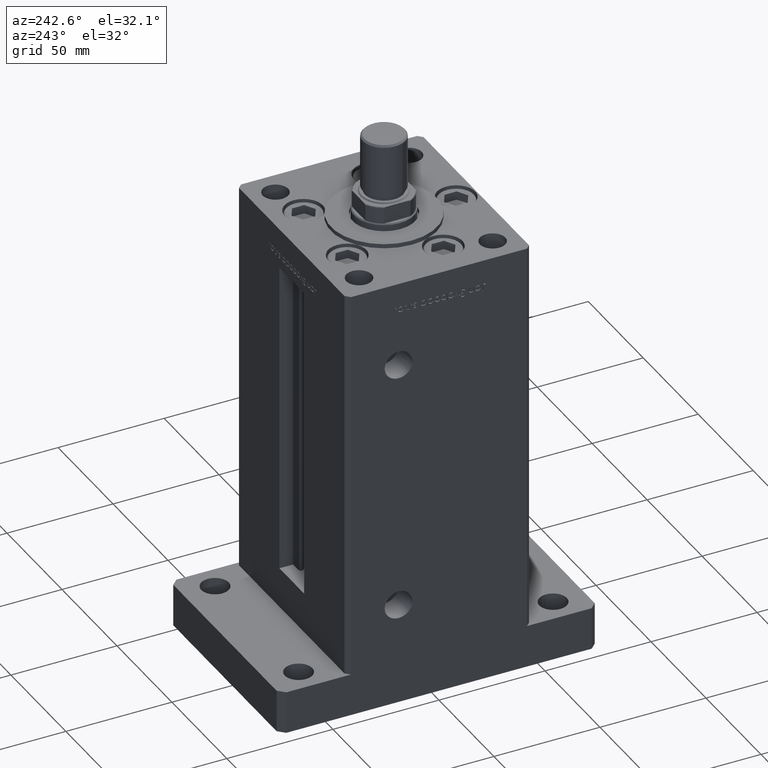
[diagram: clean part render]
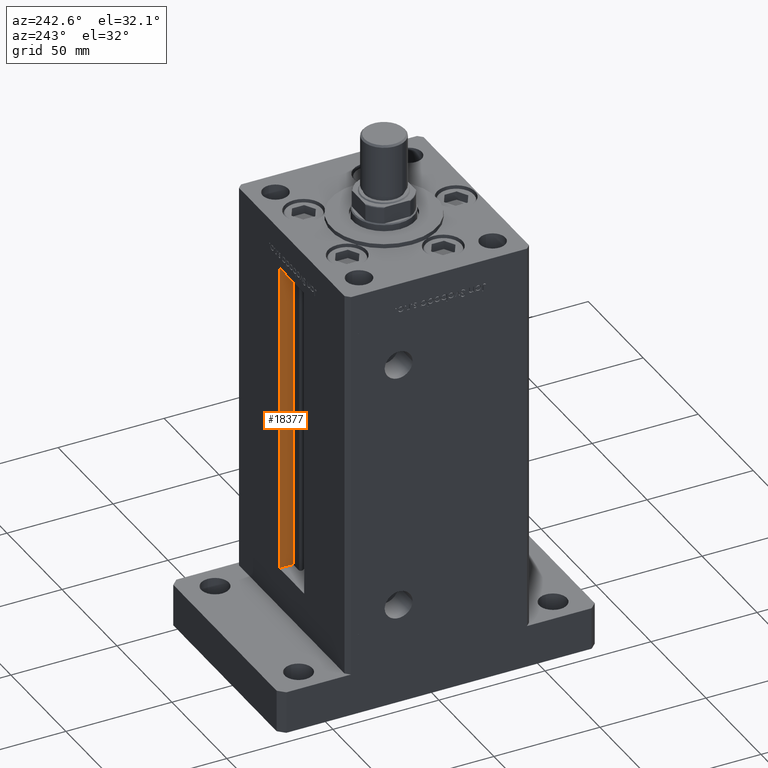
[diagram: same view with one face highlighted and labeled with its STEP entity id]
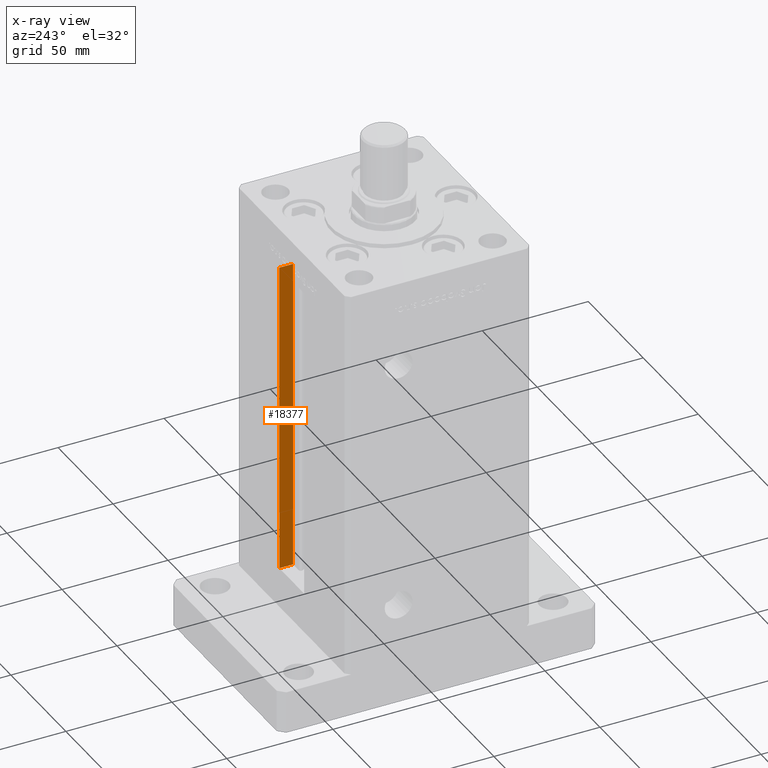
[diagram: x-ray of the same camera — body ghosted, the highlighted face saturated]
A machine part, auxiliary view. The second image highlights one B-rep face of the part: STEP entity #18377.
The next image is the same camera in x-ray: the body ghosted, the highlighted face saturated — about 0% of this face is hidden behind the body in this view.
In plain terms, the highlighted planar face has unit normal (1, 0, 0).
Its self-contained STEP definition (entity closure, byte-faithful):
#13 = DIRECTION ( 'NONE',  ( 0.000000000000000000, 1.000000000000000000, 0.000000000000000000 ) ) ;
#120 = VECTOR ( 'NONE', #4575, 1000.000000000000000 ) ;
#187 = VECTOR ( 'NONE', #27071, 1000.000000000000000 ) ;
#393 = CARTESIAN_POINT ( 'NONE',  ( 11.24999999999999112, 43.50000000000000000, 148.5000000000000000 ) ) ;
#640 = DIRECTION ( 'NONE',  ( -0.000000000000000000, -0.000000000000000000, 1.000000000000000000 ) ) ;
#1869 = CARTESIAN_POINT ( 'NONE',  ( 11.24999999999999822, 0.000000000000000000, 148.5000000000000000 ) ) ;
#3095 = AXIS2_PLACEMENT_3D ( 'NONE', #20547, #50107, #53951 ) ;
#3829 = FACE_OUTER_BOUND ( 'NONE', #24997, .T. ) ;
#4575 = DIRECTION ( 'NONE',  ( -0.000000000000000000, -0.000000000000000000, 1.000000000000000000 ) ) ;
#8041 = LINE ( 'NONE', #37340, #19026 ) ;
#8203 = ORIENTED_EDGE ( 'NONE', *, *, #18338, .F. ) ;
#8216 = CARTESIAN_POINT ( 'NONE',  ( 11.24999999999999822, 36.99999999999999289, 148.5000000000000000 ) ) ;
#9178 = VERTEX_POINT ( 'NONE', #36215 ) ;
#9817 = EDGE_CURVE ( 'NONE', #10290, #51447, #47881, .T. ) ;
#10290 = VERTEX_POINT ( 'NONE', #393 ) ;
#16232 = VECTOR ( 'NONE', #13, 1000.000000000000000 ) ;
#18236 = ORIENTED_EDGE ( 'NONE', *, *, #47405, .T. ) ;
#18338 = EDGE_CURVE ( 'NONE', #45145, #9178, #24925, .T. ) ;
#18377 = ADVANCED_FACE ( 'NONE', ( #3829 ), #33407, .F. ) ;
#19026 = VECTOR ( 'NONE', #640, 1000.000000000000000 ) ;
#20547 = CARTESIAN_POINT ( 'NONE',  ( 11.24999999999999822, 36.99999999999999289, 0.000000000000000000 ) ) ;
#20600 = EDGE_CURVE ( 'NONE', #9178, #10290, #34428, .T. ) ;
#21818 = CARTESIAN_POINT ( 'NONE',  ( 11.24999999999999822, 36.99999999999999289, 0.000000000000000000 ) ) ;
#24925 = LINE ( 'NONE', #41630, #16232 ) ;
#24997 = EDGE_LOOP ( 'NONE', ( #30015, #8203, #18236, #32813 ) ) ;
#27071 = DIRECTION ( 'NONE',  ( -0.000000000000000000, -1.000000000000000000, 0.000000000000000000 ) ) ;
#30015 = ORIENTED_EDGE ( 'NONE', *, *, #20600, .F. ) ;
#32813 = ORIENTED_EDGE ( 'NONE', *, *, #9817, .F. ) ;
#33407 = PLANE ( 'NONE',  #3095 ) ;
#34428 = LINE ( 'NONE', #51677, #120 ) ;
#36215 = CARTESIAN_POINT ( 'NONE',  ( 11.24999999999999822, 43.50000000000000000, 0.000000000000000000 ) ) ;
#37340 = CARTESIAN_POINT ( 'NONE',  ( 11.24999999999999822, 36.99999999999999289, 0.000000000000000000 ) ) ;
#41630 = CARTESIAN_POINT ( 'NONE',  ( 11.24999999999999822, 36.99999999999999289, 0.000000000000000000 ) ) ;
#45145 = VERTEX_POINT ( 'NONE', #21818 ) ;
#47405 = EDGE_CURVE ( 'NONE', #45145, #51447, #8041, .T. ) ;
#47881 = LINE ( 'NONE', #1869, #187 ) ;
#50107 = DIRECTION ( 'NONE',  ( 1.000000000000000000, -0.000000000000000000, 0.000000000000000000 ) ) ;
#51447 = VERTEX_POINT ( 'NONE', #8216 ) ;
#51677 = CARTESIAN_POINT ( 'NONE',  ( 11.24999999999999822, 43.50000000000000000, 0.000000000000000000 ) ) ;
#53951 = DIRECTION ( 'NONE',  ( 0.000000000000000000, 0.000000000000000000, -1.000000000000000000 ) ) ;